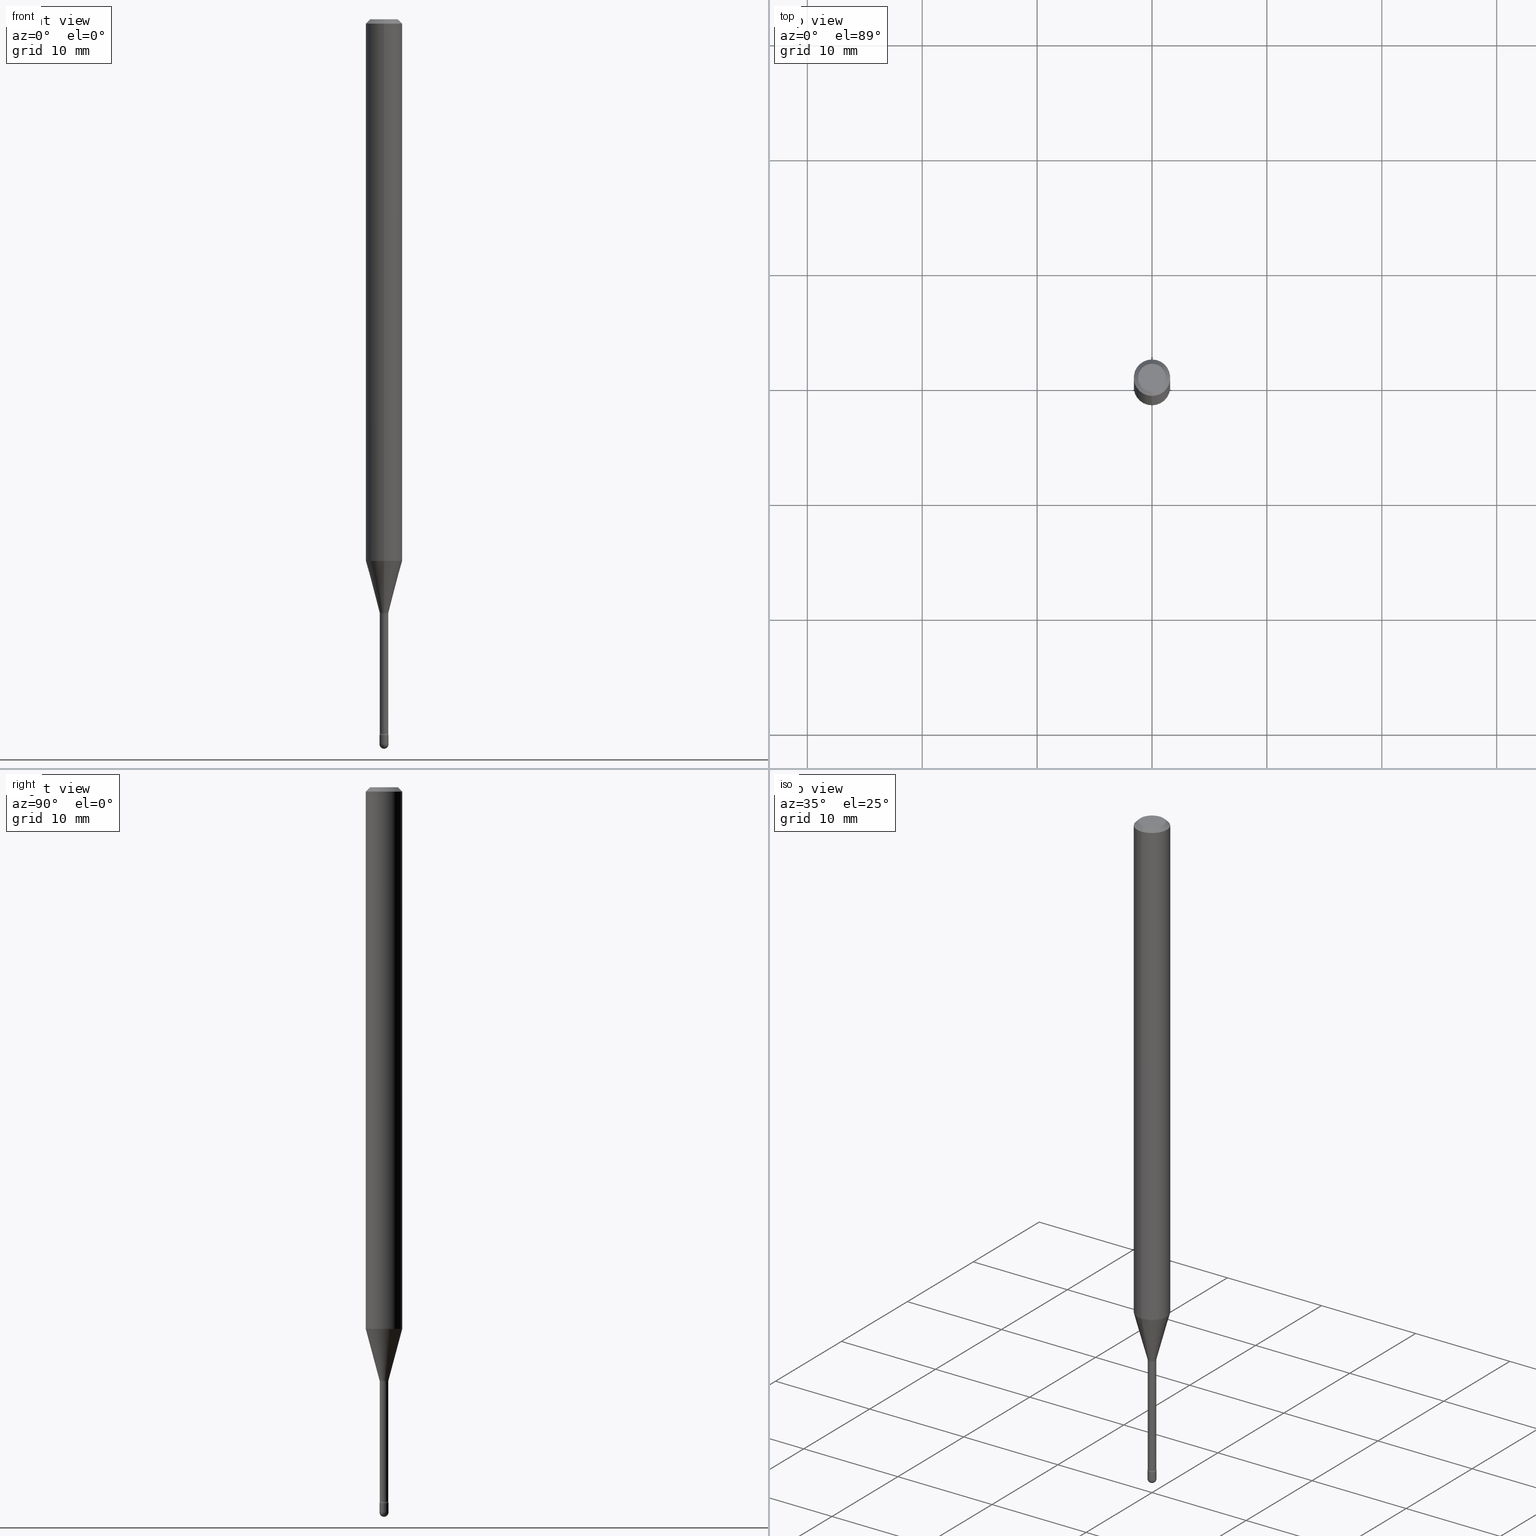
[diagram: canonical four-view strip — front | top / right | iso, engineering-drawing reading convention]
A machine part, canonical four-view strip (front | top / right | iso — engineering-drawing reading convention). The complete STEP part file that produces these views, byte-faithful:
ISO-10303-21;
HEADER;
FILE_DESCRIPTION (( 'STEP AP203' ),
    '1' );
FILE_NAME ('09442.STEP',
    '2024-04-09T23:12:34',
    ( '' ),
    ( '' ),
    'SwSTEP 2.0',
    'SolidWorks 2023',
    '' );
FILE_SCHEMA (( 'CONFIG_CONTROL_DESIGN' ));
ENDSEC;

DATA;
#1 = ORIENTED_EDGE ( 'NONE', *, *, #361, .F. ) ;
#2 = DIRECTION ( 'NONE',  ( -2.445473815707476510E-29, 3.491474164922030519E-15, 1.000000000000000000 ) ) ;
#3 = ORIENTED_EDGE ( 'NONE', *, *, #186, .F. ) ;
#4 = PERSON ( 'UNSPECIFIED', 'UNSPECIFIED', 'UNSPECIFIED', ('UNSPECIFIED'), ('UNSPECIFIED'), ('UNSPECIFIED') ) ;
#5 = DIRECTION ( 'NONE',  ( -6.982962677686265133E-15, -1.000000000000000000, 0.000000000000000000 ) ) ;
#6 = AXIS2_PLACEMENT_3D ( 'NONE', #468, #152, #77 ) ;
#7 = AXIS2_PLACEMENT_3D ( 'NONE', #532, #441, #59 ) ;
#8 = ORIENTED_EDGE ( 'NONE', *, *, #243, .T. ) ;
#9 = DIRECTION ( 'NONE',  ( -2.445473815707476510E-29, 3.491474164922030519E-15, 1.000000000000000000 ) ) ;
#10 = EDGE_LOOP ( 'NONE', ( #269, #346, #352, #479 ) ) ;
#11 = ORIENTED_EDGE ( 'NONE', *, *, #90, .F. ) ;
#12 = DIRECTION ( 'NONE',  ( 6.982962677686265922E-15, 1.000000000000000000, -3.491474164922030519E-15 ) ) ;
#13 = DIRECTION ( 'NONE',  ( -2.445473815707476510E-29, 3.491474164922030519E-15, 1.000000000000000000 ) ) ;
#14 = ORIENTED_EDGE ( 'NONE', *, *, #361, .T. ) ;
#15 = VERTEX_POINT ( 'NONE', #414 ) ;
#16 = LINE ( 'NONE', #356, #167 ) ;
#17 = VERTEX_POINT ( 'NONE', #70 ) ;
#18 = AXIS2_PLACEMENT_3D ( 'NONE', #103, #157, #84 ) ;
#19 = FACE_OUTER_BOUND ( 'NONE', #464, .T. ) ;
#20 = VERTEX_POINT ( 'NONE', #154 ) ;
#21 = LENGTH_MEASURE_WITH_UNIT ( LENGTH_MEASURE( 0.02539999999999999897 ), #25 );
#22 = EDGE_CURVE ( 'NONE', #192, #306, #179, .T. ) ;
#23 = CARTESIAN_POINT ( 'NONE',  ( 0.01549999999999999989, -8.727830476773153796E-15, -2.484500000000000153 ) ) ;
#24 = CIRCLE ( 'NONE', #281, 0.01500000000000002373 ) ;
#25 =( LENGTH_UNIT ( ) NAMED_UNIT ( * ) SI_UNIT ( $, .METRE. ) );
#26 = VECTOR ( 'NONE', #498, 39.37007874015748143 ) ;
#27 = MECHANICAL_CONTEXT ( 'NONE', #172, 'mechanical' ) ;
#28 = ADVANCED_FACE ( 'NONE', ( #548 ), #564, .F. ) ;
#29 = DIRECTION ( 'NONE',  ( -6.982962677686268288E-15, -1.000000000000000000, 0.000000000000000000 ) ) ;
#30 = COORDINATED_UNIVERSAL_TIME_OFFSET ( 5, 0, .BEHIND. ) ;
#31 = CARTESIAN_POINT ( 'NONE',  ( 5.985888121363136129E-29, -8.546261812574526278E-15, -2.447746667724196357 ) ) ;
#32 = PERSON_AND_ORGANIZATION_ROLE ( 'classification_officer' ) ;
#33 = CIRCLE ( 'NONE', #493, 0.01455000000000000217 ) ;
#34 = EDGE_CURVE ( 'NONE', #524, #387, #396, .T. ) ;
#35 = DIRECTION ( 'NONE',  ( -2.445473815707476510E-29, 3.491474164922030519E-15, 1.000000000000000000 ) ) ;
#36 = CARTESIAN_POINT ( 'NONE',  ( 4.440892098500625669E-16, 0.06250000000000000000, 2.598562635836191558E-16 ) ) ;
#37 = ORIENTED_EDGE ( 'NONE', *, *, #467, .T. ) ;
#38 = DATE_AND_TIME ( #331, #565 ) ;
#39 = DIRECTION ( 'NONE',  ( -1.000000000000000000, 6.982962677686265922E-15, -4.883557194083112901E-29 ) ) ;
#40 = AXIS2_PLACEMENT_3D ( 'NONE', #112, #202, #29 ) ;
#41 = DIRECTION ( 'NONE',  ( 1.000000000000000000, -7.105427357601001070E-15, 4.926315420686887018E-29 ) ) ;
#42 = CIRCLE ( 'NONE', #277, 0.01549999999999999989 ) ;
#43 = ORIENTED_EDGE ( 'NONE', *, *, #145, .T. ) ;
#44 = ADVANCED_FACE ( 'NONE', ( #116 ), #119, .F. ) ;
#45 = DIRECTION ( 'NONE',  ( -1.807323732225327773E-15, -0.2588190451025178529, 0.9659258262890690894 ) ) ;
#46 = EDGE_LOOP ( 'NONE', ( #268, #375, #216, #308 ) ) ;
#47 = CARTESIAN_POINT ( 'NONE',  ( 4.538917185208773533E-29, -6.480344212678622894E-15, -1.856048163777072713 ) ) ;
#48 = LINE ( 'NONE', #36, #242 ) ;
#49 = MANIFOLD_SOLID_BREP ( 'Body-Move/Copy2[2]', #209 ) ;
#50 = CARTESIAN_POINT ( 'NONE',  ( -1.051711872097320102E-16, -0.01506111260567108076, -2.033092501787272965 ) ) ;
#51 = ORIENTED_EDGE ( 'NONE', *, *, #425, .T. ) ;
#52 = AXIS2_PLACEMENT_3D ( 'NONE', #262, #162, #438 ) ;
#53 = ORIENTED_EDGE ( 'NONE', *, *, #151, .F. ) ;
#54 = VERTEX_POINT ( 'NONE', #246 ) ;
#55 = DIRECTION ( 'NONE',  ( -6.982962677686265922E-15, -1.000000000000000000, 4.370956789862821150E-15 ) ) ;
#56 = LINE ( 'NONE', #184, #517 ) ;
#57 = EDGE_LOOP ( 'NONE', ( #220, #274, #225, #422 ) ) ;
#58 =( CONVERSION_BASED_UNIT ( 'INCH', #21 ) LENGTH_UNIT ( ) NAMED_UNIT ( #104 ) );
#59 = DIRECTION ( 'NONE',  ( -6.982962677686265922E-15, -1.000000000000000000, 3.491474164922030519E-15 ) ) ;
#60 = EDGE_LOOP ( 'NONE', ( #259, #51, #448, #486, #353 ) ) ;
#61 = CARTESIAN_POINT ( 'NONE',  ( -4.364351673553912750E-16, -0.06250000000000005551, -0.01499999999999986587 ) ) ;
#62 = CIRCLE ( 'NONE', #156, 0.04749999999999999362 ) ;
#63 = DIRECTION ( 'NONE',  ( -1.000000000000000000, 6.982962677686265922E-15, -4.883557194083112901E-29 ) ) ;
#64 = DIRECTION ( 'NONE',  ( -7.105427357601001070E-15, -1.000000000000000000, 0.000000000000000000 ) ) ;
#65 = EDGE_CURVE ( 'NONE', #285, #492, #291, .T. ) ;
#66 = EDGE_LOOP ( 'NONE', ( #412, #343, #177, #231 ) ) ;
#67 = DIRECTION ( 'NONE',  ( 1.000000000000000000, 0.000000000000000000, 0.000000000000000000 ) ) ;
#68 = CARTESIAN_POINT ( 'NONE',  ( 5.998734981572139453E-29, -8.564603724182235719E-15, -2.452999999999999847 ) ) ;
#69 = ADVANCED_FACE ( 'NONE', ( #205 ), #444, .T. ) ;
#70 = CARTESIAN_POINT ( 'NONE',  ( -1.016021069602853717E-16, -0.01455000000000711453, -2.036974787463810888 ) ) ;
#71 = AXIS2_PLACEMENT_3D ( 'NONE', #525, #483, #92 ) ;
#72 = DIRECTION ( 'NONE',  ( 1.000000000000000000, -6.982962677686266711E-15, 4.876176775795935232E-29 ) ) ;
#73 = APPROVAL_PERSON_ORGANIZATION ( #198, #81, #551 ) ;
#74 = CC_DESIGN_APPROVAL ( #138, ( #388 ) ) ;
#75 = CARTESIAN_POINT ( 'NONE',  ( 5.998747269930439159E-29, -8.564586126553740940E-15, -2.452999999999999847 ) ) ;
#76 = DATE_AND_TIME ( #397, #462 ) ;
#77 = DIRECTION ( 'NONE',  ( -6.982962677686265922E-15, -1.000000000000000000, 3.491474164922030519E-15 ) ) ;
#78 = APPROVAL_STATUS ( 'not_yet_approved' ) ;
#79 = AXIS2_PLACEMENT_3D ( 'NONE', #563, #39, #168 ) ;
#80 = AXIS2_PLACEMENT_3D ( 'NONE', #123, #389, #313 ) ;
#81 = APPROVAL ( #364, 'UNSPECIFIED' ) ;
#82 = DIRECTION ( 'NONE',  ( -2.445473815707476510E-29, 3.491474164922030519E-15, 1.000000000000000000 ) ) ;
#83 = PERSON_AND_ORGANIZATION ( #4, #312 ) ;
#84 = DIRECTION ( 'NONE',  ( -6.982962677686266711E-15, -1.000000000000000000, 0.000000000000000000 ) ) ;
#85 = CARTESIAN_POINT ( 'NONE',  ( 5.998734981572139453E-29, -8.564603724182235719E-15, -2.452999999999999847 ) ) ;
#86 = CARTESIAN_POINT ( 'NONE',  ( 4.440892098501082715E-16, 0.06249999999999995143, -0.01500000000000030129 ) ) ;
#87 = FACE_OUTER_BOUND ( 'NONE', #332, .T. ) ;
#88 = CARTESIAN_POINT ( 'NONE',  ( 4.981358301728348415E-29, -7.112059458123878083E-15, -2.036974787463810888 ) ) ;
#89 = DIRECTION ( 'NONE',  ( 1.000000000000000000, -6.982962677686238312E-15, 0.000000000000000000 ) ) ;
#90 = EDGE_CURVE ( 'NONE', #285, #54, #484, .T. ) ;
#91 = EDGE_LOOP ( 'NONE', ( #530, #190, #1, #366 ) ) ;
#92 = DIRECTION ( 'NONE',  ( -6.982962677686265922E-15, -1.000000000000000000, 3.483106191921935554E-15 ) ) ;
#93 = AXIS2_PLACEMENT_3D ( 'NONE', #68, #544, #109 ) ;
#94 = CARTESIAN_POINT ( 'NONE',  ( -4.364351673553916201E-16, -0.06250000000000000000, 6.962905341988730200E-16 ) ) ;
#95 = VERTEX_POINT ( 'NONE', #23 ) ;
#96 = DIRECTION ( 'NONE',  ( -6.982962677686266711E-15, -1.000000000000000000, 0.000000000000000000 ) ) ;
#97 = EDGE_CURVE ( 'NONE', #387, #54, #302, .T. ) ;
#98 = LINE ( 'NONE', #258, #536 ) ;
#99 = ORIENTED_EDGE ( 'NONE', *, *, #97, .T. ) ;
#100 = ORIENTED_EDGE ( 'NONE', *, *, #34, .T. ) ;
#101 = FACE_OUTER_BOUND ( 'NONE', #46, .T. ) ;
#102 = DIRECTION ( 'NONE',  ( -6.982962677686266711E-15, -1.000000000000000000, 3.491474164922028942E-15 ) ) ;
#103 = CARTESIAN_POINT ( 'NONE',  ( 4.971874478031982191E-29, -7.098489944886961666E-15, -2.033092501787272965 ) ) ;
#104 = DIMENSIONAL_EXPONENTS ( 1.000000000000000000, 0.000000000000000000, 0.000000000000000000, 0.000000000000000000, 0.000000000000000000, 0.000000000000000000, 0.000000000000000000 ) ;
#105 = CLOSED_SHELL ( 'NONE', ( #126, #383, #552, #218, #510 ) ) ;
#106 = AXIS2_PLACEMENT_3D ( 'NONE', #446, #489, #183 ) ;
#107 = FACE_OUTER_BOUND ( 'NONE', #57, .T. ) ;
#108 = CARTESIAN_POINT ( 'NONE',  ( 2.023589285005646150E-45, -2.889068848000358283E-31, -8.274737283279840754E-17 ) ) ;
#109 = DIRECTION ( 'NONE',  ( 1.000000000000000000, -6.982962677686265922E-15, 4.876176775795935793E-29 ) ) ;
#110 = CC_DESIGN_PERSON_AND_ORGANIZATION_ASSIGNMENT ( #241, #32, ( #456 ) ) ;
#111 = AXIS2_PLACEMENT_3D ( 'NONE', #329, #511, #118 ) ;
#112 = CARTESIAN_POINT ( 'NONE',  ( -2.063465471255695831E-16, -0.02955000000000858329, -2.447746667724196357 ) ) ;
#113 = CIRCLE ( 'NONE', #80, 0.01549999999999999989 ) ;
#114 = ORIENTED_EDGE ( 'NONE', *, *, #342, .T. ) ;
#115 = VERTEX_POINT ( 'NONE', #411 ) ;
#116 = FACE_OUTER_BOUND ( 'NONE', #66, .T. ) ;
#117 = ADVANCED_FACE ( 'NONE', ( #324 ), #129, .T. ) ;
#118 = DIRECTION ( 'NONE',  ( 1.000000000000000000, -6.982962677686266711E-15, 4.876176775795935232E-29 ) ) ;
#119 = TOROIDAL_SURFACE ( 'NONE', #6, 0.02954999999999999988, 0.01500000000000002373 ) ;
#120 = AXIS2_PLACEMENT_3D ( 'NONE', #310, #270, #395 ) ;
#121 = DIRECTION ( 'NONE',  ( 1.000000000000000000, -6.982962677686301420E-15, 0.000000000000000000 ) ) ;
#122 = CC_DESIGN_APPROVAL ( #81, ( #442 ) ) ;
#123 = CARTESIAN_POINT ( 'NONE',  ( 6.075767248966972494E-29, -8.674585386355795965E-15, -2.484500000000000153 ) ) ;
#124 = APPROVAL_DATE_TIME ( #369, #138 ) ;
#125 = CARTESIAN_POINT ( 'NONE',  ( 5.985900383404751358E-29, -8.546244252633021898E-15, -2.447746667724196357 ) ) ;
#126 = ADVANCED_FACE ( 'NONE', ( #365 ), #553, .T. ) ;
#127 = DIRECTION ( 'NONE',  ( -6.982962677686266711E-15, -1.000000000000000000, 0.000000000000000000 ) ) ;
#128 = VERTEX_POINT ( 'NONE', #473 ) ;
#129 = CONICAL_SURFACE ( 'NONE', #453, 0.01506111260566398227, 0.2617993877991499074 ) ;
#130 = APPROVAL_ROLE ( '' ) ;
#131 = AXIS2_PLACEMENT_3D ( 'NONE', #139, #404, #102 ) ;
#132 = CARTESIAN_POINT ( 'NONE',  ( 5.998734981572139453E-29, -8.564603724182235719E-15, -2.452999999999999847 ) ) ;
#133 = APPROVAL_PERSON_ORGANIZATION ( #287, #138, #376 ) ;
#134 = ADVANCED_FACE ( 'NONE', ( #141 ), #377, .T. ) ;
#135 = DIRECTION ( 'NONE',  ( 2.445473815707476230E-29, -3.491474164922030519E-15, -1.000000000000000000 ) ) ;
#136 = CARTESIAN_POINT ( 'NONE',  ( -1.101341240427545269E-16, -0.01550000000000864402, -2.484500000000000153 ) ) ;
#137 = ORIENTED_EDGE ( 'NONE', *, *, #371, .T. ) ;
#138 = APPROVAL ( #78, 'UNSPECIFIED' ) ;
#139 = CARTESIAN_POINT ( 'NONE',  ( -1.169113584055446105E-44, 1.669184350826100908E-30, 4.780733988912460139E-16 ) ) ;
#140 = VERTEX_POINT ( 'NONE', #136 ) ;
#141 = FACE_OUTER_BOUND ( 'NONE', #549, .T. ) ;
#142 = CIRCLE ( 'NONE', #461, 0.01549999999999999989 ) ;
#143 = AXIS2_PLACEMENT_3D ( 'NONE', #368, #284, #463 ) ;
#144 = CARTESIAN_POINT ( 'NONE',  ( 1.033839680531545705E-16, 0.01454999999999289327, -2.036974787463810888 ) ) ;
#145 = EDGE_CURVE ( 'NONE', #339, #426, #98, .T. ) ;
#146 = CARTESIAN_POINT ( 'NONE',  ( 6.075767248966972494E-29, -8.674585386355795965E-15, -2.484500000000000153 ) ) ;
#147 = ORIENTED_EDGE ( 'NONE', *, *, #349, .F. ) ;
#148 = AXIS2_PLACEMENT_3D ( 'NONE', #31, #155, #196 ) ;
#149 = CARTESIAN_POINT ( 'NONE',  ( -4.364351673553463592E-16, -0.06250000000000649480, -1.856048163777072491 ) ) ;
#150 = AXIS2_PLACEMENT_3D ( 'NONE', #452, #63, #401 ) ;
#151 = EDGE_CURVE ( 'NONE', #524, #285, #405, .T. ) ;
#152 = DIRECTION ( 'NONE',  ( -2.445473815707476510E-29, 3.491474164922030519E-15, 1.000000000000000000 ) ) ;
#153 = PERSON_AND_ORGANIZATION ( #4, #312 ) ;
#154 = CARTESIAN_POINT ( 'NONE',  ( 4.440892098501077785E-16, 0.06249999999999351213, -1.856048163777072935 ) ) ;
#155 = DIRECTION ( 'NONE',  ( -2.445473815707476510E-29, 3.491474164922030519E-15, 1.000000000000000000 ) ) ;
#156 = AXIS2_PLACEMENT_3D ( 'NONE', #436, #351, #222 ) ;
#157 = DIRECTION ( 'NONE',  ( -2.445473815707476510E-29, 3.491474164922030519E-15, 1.000000000000000000 ) ) ;
#158 = APPLICATION_CONTEXT ( 'configuration controlled 3d designs of mechanical parts and assemblies' ) ;
#159 = DIRECTION ( 'NONE',  ( 1.000000000000000000, -7.105427357601001070E-15, 4.926315420686887018E-29 ) ) ;
#160 = APPROVAL_DATE_TIME ( #469, #195 ) ;
#161 = CARTESIAN_POINT ( 'NONE',  ( 6.075767248966972494E-29, -8.674585386355795965E-15, -2.484500000000000153 ) ) ;
#162 = DIRECTION ( 'NONE',  ( -2.445473815707476510E-29, 3.491474164922030519E-15, 1.000000000000000000 ) ) ;
#163 = VERTEX_POINT ( 'NONE', #206 ) ;
#164 = CALENDAR_DATE ( 2024, 9, 4 ) ;
#165 = CIRCLE ( 'NONE', #71, 0.06250000000000000000 ) ;
#166 = EDGE_CURVE ( 'NONE', #15, #140, #506, .T. ) ;
#167 = VECTOR ( 'NONE', #187, 39.37007874015748143 ) ;
#168 = DIRECTION ( 'NONE',  ( 6.982962677686265922E-15, 1.000000000000000000, 0.000000000000000000 ) ) ;
#169 = DIRECTION ( 'NONE',  ( -2.445473815707476510E-29, 3.491474164922030519E-15, 1.000000000000000000 ) ) ;
#170 = EDGE_LOOP ( 'NONE', ( #14, #481, #384, #200 ) ) ;
#171 = CC_DESIGN_DATE_AND_TIME_ASSIGNMENT ( #38, #253, ( #456 ) ) ;
#172 = APPLICATION_CONTEXT ( 'configuration controlled 3d designs of mechanical parts and assemblies' ) ;
#173 = CARTESIAN_POINT ( 'NONE',  ( 6.075767248966972494E-29, -8.674585386355795965E-15, -2.484500000000000153 ) ) ;
#174 = FACE_OUTER_BOUND ( 'NONE', #182, .T. ) ;
#175 = CARTESIAN_POINT ( 'NONE',  ( 4.971874478031982191E-29, -7.098489944886961666E-15, -2.033092501787272965 ) ) ;
#176 = ORIENTED_EDGE ( 'NONE', *, *, #97, .F. ) ;
#177 = ORIENTED_EDGE ( 'NONE', *, *, #221, .T. ) ;
#178 = PLANE ( 'NONE',  #430 ) ;
#179 = CIRCLE ( 'NONE', #328, 0.04749999999999999362 ) ;
#180 = CARTESIAN_POINT ( 'NONE',  ( 6.075767248966972494E-29, -8.674585386355795965E-15, -2.484500000000000153 ) ) ;
#181 = CIRCLE ( 'NONE', #455, 0.01549999999999999989 ) ;
#182 = EDGE_LOOP ( 'NONE', ( #477, #314, #447, #420 ) ) ;
#183 = DIRECTION ( 'NONE',  ( -6.982962677686265922E-15, -1.000000000000000000, 3.491474164922030519E-15 ) ) ;
#184 = CARTESIAN_POINT ( 'NONE',  ( 4.364351673553919652E-16, 0.06249999999999995143, -0.01500000000000030129 ) ) ;
#185 = DIRECTION ( 'NONE',  ( -2.445473815707476510E-29, 3.491474164922030519E-15, 1.000000000000000000 ) ) ;
#186 = EDGE_CURVE ( 'NONE', #20, #451, #48, .T. ) ;
#187 = DIRECTION ( 'NONE',  ( -2.445468806185136877E-29, 3.491481338843145188E-15, 1.000000000000000000 ) ) ;
#188 = VECTOR ( 'NONE', #232, 39.37007874015748143 ) ;
#189 = FACE_OUTER_BOUND ( 'NONE', #538, .T. ) ;
#190 = ORIENTED_EDGE ( 'NONE', *, *, #201, .T. ) ;
#191 = EDGE_CURVE ( 'NONE', #451, #443, #165, .T. ) ;
#192 = VERTEX_POINT ( 'NONE', #264 ) ;
#193 = AXIS2_PLACEMENT_3D ( 'NONE', #217, #340, #5 ) ;
#194 = CONICAL_SURFACE ( 'NONE', #143, 0.06250000000000000000, 0.7853981633974483900 ) ;
#195 = APPROVAL ( #431, 'UNSPECIFIED' ) ;
#196 = DIRECTION ( 'NONE',  ( -6.982962677686265922E-15, -1.000000000000000000, 3.491474164922030519E-15 ) ) ;
#197 = DIRECTION ( 'NONE',  ( -2.445468806185136597E-29, 3.491481338843145583E-15, 1.000000000000000000 ) ) ;
#198 = PERSON_AND_ORGANIZATION ( #4, #312 ) ;
#199 = DIRECTION ( 'NONE',  ( -6.982962677686266711E-15, -1.000000000000000000, 0.000000000000000000 ) ) ;
#200 = ORIENTED_EDGE ( 'NONE', *, *, #301, .F. ) ;
#201 = EDGE_CURVE ( 'NONE', #115, #20, #480, .T. ) ;
#202 = DIRECTION ( 'NONE',  ( -1.000000000000000000, 6.982962677686265922E-15, -4.883557194083112340E-29 ) ) ;
#203 = COORDINATED_UNIVERSAL_TIME_OFFSET ( 5, 0, .BEHIND. ) ;
#204 = LOCAL_TIME ( 19, 12, 34.00000000000000000, #296 ) ;
#205 = FACE_OUTER_BOUND ( 'NONE', #450, .T. ) ;
#206 = CARTESIAN_POINT ( 'NONE',  ( 6.114334769336955252E-29, -8.727754245838525120E-15, -2.500000000000000000 ) ) ;
#207 = ADVANCED_FACE ( 'NONE', ( #423 ), #294, .T. ) ;
#208 = CARTESIAN_POINT ( 'NONE',  ( -1.169113584055446105E-44, 1.669184350826100908E-30, 4.780733988912460139E-16 ) ) ;
#209 = CLOSED_SHELL ( 'NONE', ( #449, #330, #488, #403, #207, #117, #134, #282, #69, #475, #278, #28, #496, #44 ) ) ;
#210 = COORDINATED_UNIVERSAL_TIME_OFFSET ( 5, 0, .BEHIND. ) ;
#211 = CC_DESIGN_DATE_AND_TIME_ASSIGNMENT ( #466, #560, ( #442 ) ) ;
#212 = CIRCLE ( 'NONE', #120, 0.06250000000000000000 ) ;
#213 = DIRECTION ( 'NONE',  ( 7.105427357600999492E-15, 1.000000000000000000, 0.000000000000000000 ) ) ;
#214 = ORIENTED_EDGE ( 'NONE', *, *, #467, .F. ) ;
#215 = ORIENTED_EDGE ( 'NONE', *, *, #458, .T. ) ;
#216 = ORIENTED_EDGE ( 'NONE', *, *, #349, .T. ) ;
#217 = CARTESIAN_POINT ( 'NONE',  ( 5.985900383404751358E-29, -8.546244252633021898E-15, -2.447746667724196357 ) ) ;
#218 = ADVANCED_FACE ( 'NONE', ( #174 ), #249, .T. ) ;
#219 = ORIENTED_EDGE ( 'NONE', *, *, #556, .F. ) ;
#220 = ORIENTED_EDGE ( 'NONE', *, *, #309, .F. ) ;
#221 = EDGE_CURVE ( 'NONE', #339, #17, #385, .T. ) ;
#222 = DIRECTION ( 'NONE',  ( -6.982962677686266711E-15, -1.000000000000000000, 3.491474164922030914E-15 ) ) ;
#223 = ORIENTED_EDGE ( 'NONE', *, *, #534, .F. ) ;
#224 =( NAMED_UNIT ( * ) PLANE_ANGLE_UNIT ( ) SI_UNIT ( $, .RADIAN. ) );
#225 = ORIENTED_EDGE ( 'NONE', *, *, #166, .F. ) ;
#226 = AXIS2_PLACEMENT_3D ( 'NONE', #360, #197, #72 ) ;
#227 = SPHERICAL_SURFACE ( 'NONE', #150, 0.01549999999999993744 ) ;
#228 = PLANE ( 'NONE',  #93 ) ;
#229 = ADVANCED_BREP_SHAPE_REPRESENTATION ( '09442', ( #421, #49, #235 ), #406 ) ;
#230 = EDGE_CURVE ( 'NONE', #285, #524, #290, .T. ) ;
#231 = ORIENTED_EDGE ( 'NONE', *, *, #415, .T. ) ;
#232 = DIRECTION ( 'NONE',  ( -4.851104656540964275E-15, -0.7071067811865500152, -0.7071067811865450192 ) ) ;
#233 = APPLICATION_PROTOCOL_DEFINITION ( 'international standard', 'config_control_design', 1994, #172 ) ;
#234 = UNCERTAINTY_MEASURE_WITH_UNIT (LENGTH_MEASURE( 1.000000000000000082E-05 ), #58, 'distance_accuracy_value', 'NONE');
#235 = AXIS2_PLACEMENT_3D ( 'NONE', #457, #237, #67 ) ;
#236 = DIRECTION ( 'NONE',  ( -6.982962677686265922E-15, -1.000000000000000000, 0.000000000000000000 ) ) ;
#237 = DIRECTION ( 'NONE',  ( 0.000000000000000000, 0.000000000000000000, 1.000000000000000000 ) ) ;
#238 = CARTESIAN_POINT ( 'NONE',  ( 4.971874478031982191E-29, -7.098489944886961666E-15, -2.033092501787272965 ) ) ;
#239 = EDGE_CURVE ( 'NONE', #490, #15, #142, .T. ) ;
#240 = EDGE_LOOP ( 'NONE', ( #11, #53, #100, #99 ) ) ;
#241 = PERSON_AND_ORGANIZATION ( #4, #312 ) ;
#242 = VECTOR ( 'NONE', #2, 39.37007874015748143 ) ;
#243 = EDGE_CURVE ( 'NONE', #128, #392, #516, .T. ) ;
#244 = DIRECTION ( 'NONE',  ( -2.445473815707476510E-29, 3.491474164922030519E-15, 1.000000000000000000 ) ) ;
#245 = CARTESIAN_POINT ( 'NONE',  ( 0.01549999999999999989, -8.672839645686373673E-15, -2.452999999999999847 ) ) ;
#246 = CARTESIAN_POINT ( 'NONE',  ( 1.101341240428755801E-16, 0.01549999999999144597, -2.452999999999999847 ) ) ;
#247 = PERSON_AND_ORGANIZATION_ROLE ( 'creator' ) ;
#248 = ORIENTED_EDGE ( 'NONE', *, *, #288, .F. ) ;
#249 = SPHERICAL_SURFACE ( 'NONE', #79, 0.01549999999999993744 ) ;
#250 = DIRECTION ( 'NONE',  ( -6.982962677686266711E-15, -1.000000000000000000, 3.491474164922028942E-15 ) ) ;
#251 = CC_DESIGN_PERSON_AND_ORGANIZATION_ASSIGNMENT ( #512, #252, ( #388 ) ) ;
#252 = PERSON_AND_ORGANIZATION_ROLE ( 'design_supplier' ) ;
#253 = DATE_TIME_ROLE ( 'classification_date' ) ;
#254 = CARTESIAN_POINT ( 'NONE',  ( 2.099653784171593762E-16, 0.02954999999999288751, -2.036974787463810888 ) ) ;
#255 = CARTESIAN_POINT ( 'NONE',  ( 3.840629472727447874E-16, 0.04749999999999999362, -2.485923956665948360E-16 ) ) ;
#256 = ORIENTED_EDGE ( 'NONE', *, *, #350, .T. ) ;
#257 = CIRCLE ( 'NONE', #554, 0.01506111260566398227 ) ;
#258 = CARTESIAN_POINT ( 'NONE',  ( -1.051711872097320102E-16, -0.01506111260567108076, -2.033092501787272965 ) ) ;
#259 = ORIENTED_EDGE ( 'NONE', *, *, #239, .T. ) ;
#260 = EDGE_CURVE ( 'NONE', #115, #492, #24, .T. ) ;
#261 = CARTESIAN_POINT ( 'NONE',  ( -1.169113584055446105E-44, 1.669184350826100908E-30, 4.780733988912460139E-16 ) ) ;
#262 = CARTESIAN_POINT ( 'NONE',  ( 5.998747269930439159E-29, -8.564586126553740940E-15, -2.452999999999999847 ) ) ;
#263 = EDGE_LOOP ( 'NONE', ( #176, #147 ) ) ;
#264 = CARTESIAN_POINT ( 'NONE',  ( -3.773273898774340269E-16, -0.04749999999999999362, 8.309765000099803325E-17 ) ) ;
#265 = ORIENTED_EDGE ( 'NONE', *, *, #415, .F. ) ;
#266 = DIRECTION ( 'NONE',  ( -6.982962677686265922E-15, -1.000000000000000000, 3.491474164922030519E-15 ) ) ;
#267 = AXIS2_PLACEMENT_3D ( 'NONE', #85, #297, #89 ) ;
#268 = ORIENTED_EDGE ( 'NONE', *, *, #230, .F. ) ;
#269 = ORIENTED_EDGE ( 'NONE', *, *, #65, .F. ) ;
#270 = DIRECTION ( 'NONE',  ( -2.445473815707476510E-29, 3.491474164922030519E-15, 1.000000000000000000 ) ) ;
#271 = CC_DESIGN_PERSON_AND_ORGANIZATION_ASSIGNMENT ( #417, #478, ( #388 ) ) ;
#272 = DIRECTION ( 'NONE',  ( -2.445468806185136597E-29, 3.491481338843145583E-15, 1.000000000000000000 ) ) ;
#273 = LINE ( 'NONE', #94, #386 ) ;
#274 = ORIENTED_EDGE ( 'NONE', *, *, #528, .T. ) ;
#275 = CARTESIAN_POINT ( 'NONE',  ( 6.075767248966972494E-29, -8.674585386355795965E-15, -2.484500000000000153 ) ) ;
#276 = VECTOR ( 'NONE', #374, 39.37007874015748854 ) ;
#277 = AXIS2_PLACEMENT_3D ( 'NONE', #132, #523, #433 ) ;
#278 = ADVANCED_FACE ( 'NONE', ( #380 ), #341, .F. ) ;
#279 = CARTESIAN_POINT ( 'NONE',  ( -1.082359215040772121E-16, -0.01550000000000857463, -2.452999999999999847 ) ) ;
#280 = DIRECTION ( 'NONE',  ( 7.105427357601003436E-15, 1.000000000000000000, 0.000000000000000000 ) ) ;
#281 = AXIS2_PLACEMENT_3D ( 'NONE', #254, #41, #213 ) ;
#282 = ADVANCED_FACE ( 'NONE', ( #189 ), #541, .T. ) ;
#283 = AXIS2_PLACEMENT_3D ( 'NONE', #491, #13, #391 ) ;
#284 = DIRECTION ( 'NONE',  ( 2.445473815707476510E-29, -3.491474164922030519E-15, -1.000000000000000000 ) ) ;
#285 = VERTEX_POINT ( 'NONE', #394 ) ;
#286 = CARTESIAN_POINT ( 'NONE',  ( 1.033839680530946541E-16, 0.01455000000000001258, 4.272724497916305187E-16 ) ) ;
#287 = PERSON_AND_ORGANIZATION ( #4, #312 ) ;
#288 = EDGE_CURVE ( 'NONE', #306, #451, #56, .T. ) ;
#289 = PRODUCT_DEFINITION_SHAPE ( 'NONE', 'NONE',  #442 ) ;
#290 = CIRCLE ( 'NONE', #193, 0.01455000000000002472 ) ;
#291 = LINE ( 'NONE', #286, #545 ) ;
#292 = CIRCLE ( 'NONE', #52, 0.01549999999999999989 ) ;
#293 = EDGE_CURVE ( 'NONE', #95, #392, #16, .T. ) ;
#294 = CYLINDRICAL_SURFACE ( 'NONE', #320, 0.06250000000000000000 ) ;
#295 = ORIENTED_EDGE ( 'NONE', *, *, #151, .T. ) ;
#296 = COORDINATED_UNIVERSAL_TIME_OFFSET ( 5, 0, .BEHIND. ) ;
#297 = DIRECTION ( 'NONE',  ( -2.445468806185136597E-29, 3.491481338843145583E-15, 1.000000000000000000 ) ) ;
#298 = EDGE_LOOP ( 'NONE', ( #562, #390, #555, #248 ) ) ;
#299 = EDGE_LOOP ( 'NONE', ( #337, #435, #114, #439 ) ) ;
#300 = DIRECTION ( 'NONE',  ( -6.982962677686265133E-15, -1.000000000000000000, 0.000000000000000000 ) ) ;
#301 = EDGE_CURVE ( 'NONE', #426, #443, #273, .T. ) ;
#302 = CIRCLE ( 'NONE', #336, 0.01549999999999999989 ) ;
#303 = CIRCLE ( 'NONE', #527, 0.01549999999999993744 ) ;
#304 = DIRECTION ( 'NONE',  ( -2.445473815707476510E-29, 3.491474164922030519E-15, 1.000000000000000000 ) ) ;
#305 = CYLINDRICAL_SURFACE ( 'NONE', #547, 0.01455000000000001258 ) ;
#306 = VERTEX_POINT ( 'NONE', #255 ) ;
#307 = FACE_OUTER_BOUND ( 'NONE', #10, .T. ) ;
#308 = ORIENTED_EDGE ( 'NONE', *, *, #34, .F. ) ;
#309 = EDGE_CURVE ( 'NONE', #163, #490, #303, .T. ) ;
#310 = CARTESIAN_POINT ( 'NONE',  ( 4.538917185208773533E-29, -6.480344212678622894E-15, -1.856048163777072713 ) ) ;
#311 = FACE_OUTER_BOUND ( 'NONE', #381, .T. ) ;
#312 = ORGANIZATION ( 'UNSPECIFIED', 'UNSPECIFIED', '' ) ;
#313 = DIRECTION ( 'NONE',  ( 1.000000000000000000, -6.982962677686301420E-15, 0.000000000000000000 ) ) ;
#314 = ORIENTED_EDGE ( 'NONE', *, *, #309, .T. ) ;
#315 = COORDINATED_UNIVERSAL_TIME_OFFSET ( 5, 0, .BEHIND. ) ;
#316 = LINE ( 'NONE', #362, #26 ) ;
#317 = CARTESIAN_POINT ( 'NONE',  ( -1.016021069602754739E-16, -0.01455000000000856997, -2.447746667724196357 ) ) ;
#318 = EDGE_CURVE ( 'NONE', #392, #128, #42, .T. ) ;
#319 = CARTESIAN_POINT ( 'NONE',  ( -1.016021069603352671E-16, -0.01455000000000001258, 5.288743479908616571E-16 ) ) ;
#320 = AXIS2_PLACEMENT_3D ( 'NONE', #261, #304, #335 ) ;
#321 = AXIS2_PLACEMENT_3D ( 'NONE', #418, #487, #96 ) ;
#322 = FACE_OUTER_BOUND ( 'NONE', #323, .T. ) ;
#323 = EDGE_LOOP ( 'NONE', ( #434, #531, #256, #507, #440 ) ) ;
#324 = FACE_OUTER_BOUND ( 'NONE', #91, .T. ) ;
#325 = EDGE_CURVE ( 'NONE', #339, #115, #257, .T. ) ;
#326 = FACE_OUTER_BOUND ( 'NONE', #298, .T. ) ;
#327 = DIRECTION ( 'NONE',  ( 6.982962677686265922E-15, 1.000000000000000000, -3.483106191921935554E-15 ) ) ;
#328 = AXIS2_PLACEMENT_3D ( 'NONE', #108, #550, #372 ) ;
#329 = CARTESIAN_POINT ( 'NONE',  ( 0.000000000000000000, 0.000000000000000000, 0.000000000000000000 ) ) ;
#330 = ADVANCED_FACE ( 'NONE', ( #87 ), #305, .T. ) ;
#331 = CALENDAR_DATE ( 2024, 9, 4 ) ;
#332 = EDGE_LOOP ( 'NONE', ( #295, #494, #265, #223 ) ) ;
#333 = DIRECTION ( 'NONE',  ( -2.445473815707476510E-29, 3.491474164922030519E-15, 1.000000000000000000 ) ) ;
#334 = CC_DESIGN_PERSON_AND_ORGANIZATION_ASSIGNMENT ( #153, #504, ( #370 ) ) ;
#335 = DIRECTION ( 'NONE',  ( -6.982962677686265922E-15, -1.000000000000000000, 3.491474164922031308E-15 ) ) ;
#336 = AXIS2_PLACEMENT_3D ( 'NONE', #75, #333, #236 ) ;
#337 = ORIENTED_EDGE ( 'NONE', *, *, #371, .F. ) ;
#338 = CIRCLE ( 'NONE', #485, 0.06250000000000000000 ) ;
#339 = VERTEX_POINT ( 'NONE', #50 ) ;
#340 = DIRECTION ( 'NONE',  ( -2.445473815707476510E-29, 3.491474164922030519E-15, 1.000000000000000000 ) ) ;
#341 = PLANE ( 'NONE',  #7 ) ;
#342 = EDGE_CURVE ( 'NONE', #492, #17, #355, .T. ) ;
#343 = ORIENTED_EDGE ( 'NONE', *, *, #325, .F. ) ;
#344 = CARTESIAN_POINT ( 'NONE',  ( -2.063465471255793699E-16, -0.02955000000000711224, -2.036974787463810888 ) ) ;
#345 = AXIS2_PLACEMENT_3D ( 'NONE', #88, #9, #266 ) ;
#346 = ORIENTED_EDGE ( 'NONE', *, *, #230, .T. ) ;
#347 = CARTESIAN_POINT ( 'NONE',  ( 3.316907271900976096E-16, 0.04749999999999999362, 3.181799019542745485E-17 ) ) ;
#348 = DIRECTION ( 'NONE',  ( -2.445473815707476510E-29, 3.491474164922030519E-15, 1.000000000000000000 ) ) ;
#349 = EDGE_CURVE ( 'NONE', #54, #387, #292, .T. ) ;
#350 = EDGE_CURVE ( 'NONE', #140, #95, #113, .T. ) ;
#351 = DIRECTION ( 'NONE',  ( -2.445473815707476510E-29, 3.491474164922030519E-15, 1.000000000000000000 ) ) ;
#352 = ORIENTED_EDGE ( 'NONE', *, *, #534, .T. ) ;
#353 = ORIENTED_EDGE ( 'NONE', *, *, #515, .T. ) ;
#354 = AXIS2_PLACEMENT_3D ( 'NONE', #557, #408, #327 ) ;
#355 = CIRCLE ( 'NONE', #321, 0.01455000000000000217 ) ;
#356 = CARTESIAN_POINT ( 'NONE',  ( 0.01549999999999999989, -1.082359215041371286E-16, 7.558074002483699918E-31 ) ) ;
#357 = LOCAL_TIME ( 19, 12, 34.00000000000000000, #210 ) ;
#358 = ORIENTED_EDGE ( 'NONE', *, *, #458, .F. ) ;
#359 = DIRECTION ( 'NONE',  ( -6.982962677686266711E-15, -1.000000000000000000, 0.000000000000000000 ) ) ;
#360 = CARTESIAN_POINT ( 'NONE',  ( 0.000000000000000000, 0.000000000000000000, 0.000000000000000000 ) ) ;
#361 = EDGE_CURVE ( 'NONE', #426, #20, #212, .T. ) ;
#362 = CARTESIAN_POINT ( 'NONE',  ( -0.01549999999999999989, 1.101341240428155280E-16, -7.624349389895103058E-31 ) ) ;
#363 = LINE ( 'NONE', #503, #188 ) ;
#364 = APPROVAL_STATUS ( 'not_yet_approved' ) ;
#365 = FACE_OUTER_BOUND ( 'NONE', #60, .T. ) ;
#366 = ORIENTED_EDGE ( 'NONE', *, *, #145, .F. ) ;
#367 = TOROIDAL_SURFACE ( 'NONE', #106, 0.02955000000000003804, 0.01500000000000001506 ) ;
#368 = CARTESIAN_POINT ( 'NONE',  ( 3.668210723561235154E-31, -5.237211247383074400E-17, -0.01500000000000008271 ) ) ;
#369 = DATE_AND_TIME ( #164, #518 ) ;
#370 = PRODUCT ( '09442', '09442', '', ( #27 ) ) ;
#371 = EDGE_CURVE ( 'NONE', #115, #339, #472, .T. ) ;
#372 = DIRECTION ( 'NONE',  ( -6.982962677686266711E-15, -1.000000000000000000, 3.491474164922030914E-15 ) ) ;
#373 = CALENDAR_DATE ( 2024, 9, 4 ) ;
#374 = DIRECTION ( 'NONE',  ( 1.839019923739597554E-15, 0.2588190451025245697, 0.9659258262890670910 ) ) ;
#375 = ORIENTED_EDGE ( 'NONE', *, *, #90, .T. ) ;
#376 = APPROVAL_ROLE ( '' ) ;
#377 = CONICAL_SURFACE ( 'NONE', #429, 0.01506111260566398227, 0.2617993877991499074 ) ;
#378 = AXIS2_PLACEMENT_3D ( 'NONE', #465, #413, #419 ) ;
#379 = CALENDAR_DATE ( 2024, 9, 4 ) ;
#380 = FACE_OUTER_BOUND ( 'NONE', #263, .T. ) ;
#381 = EDGE_LOOP ( 'NONE', ( #215, #559 ) ) ;
#382 = DIRECTION ( 'NONE',  ( -2.445468806185136597E-29, 3.491481338843145583E-15, 1.000000000000000000 ) ) ;
#383 = ADVANCED_FACE ( 'NONE', ( #107 ), #227, .T. ) ;
#384 = ORIENTED_EDGE ( 'NONE', *, *, #399, .F. ) ;
#385 = CIRCLE ( 'NONE', #470, 0.01500000000000002373 ) ;
#386 = VECTOR ( 'NONE', #169, 39.37007874015748143 ) ;
#387 = VERTEX_POINT ( 'NONE', #279 ) ;
#388 = PRODUCT_DEFINITION_FORMATION_WITH_SPECIFIED_SOURCE ( 'ANY', '', #370, .NOT_KNOWN. ) ;
#389 = DIRECTION ( 'NONE',  ( -2.445468806185136597E-29, 3.491481338843145583E-15, 1.000000000000000000 ) ) ;
#390 = ORIENTED_EDGE ( 'NONE', *, *, #556, .T. ) ;
#391 = DIRECTION ( 'NONE',  ( -6.982962677686265922E-15, -1.000000000000000000, 3.491474164922031308E-15 ) ) ;
#392 = VERTEX_POINT ( 'NONE', #245 ) ;
#393 = ORIENTED_EDGE ( 'NONE', *, *, #201, .F. ) ;
#394 = CARTESIAN_POINT ( 'NONE',  ( 1.067590460480151308E-16, 0.01454999999999147774, -2.447746667724196357 ) ) ;
#395 = DIRECTION ( 'NONE',  ( -6.982962677686265922E-15, -1.000000000000000000, 4.370956789862821150E-15 ) ) ;
#396 = CIRCLE ( 'NONE', #40, 0.01500000000000001159 ) ;
#397 = CALENDAR_DATE ( 2024, 9, 4 ) ;
#398 = CIRCLE ( 'NONE', #502, 0.01549999999999993744 ) ;
#399 = EDGE_CURVE ( 'NONE', #443, #451, #445, .T. ) ;
#400 = ORIENTED_EDGE ( 'NONE', *, *, #301, .T. ) ;
#401 = DIRECTION ( 'NONE',  ( 6.982962677686265922E-15, 1.000000000000000000, 0.000000000000000000 ) ) ;
#402 = FACE_OUTER_BOUND ( 'NONE', #299, .T. ) ;
#403 = ADVANCED_FACE ( 'NONE', ( #326 ), #194, .T. ) ;
#404 = DIRECTION ( 'NONE',  ( -2.445473815707476510E-29, 3.491474164922030519E-15, 1.000000000000000000 ) ) ;
#405 = CIRCLE ( 'NONE', #500, 0.01455000000000002472 ) ;
#406 =( GEOMETRIC_REPRESENTATION_CONTEXT ( 3 ) GLOBAL_UNCERTAINTY_ASSIGNED_CONTEXT ( ( #234 ) ) GLOBAL_UNIT_ASSIGNED_CONTEXT ( ( #58, #224, #497 ) ) REPRESENTATION_CONTEXT ( 'NONE', 'WORKASPACE' ) );
#407 = PRODUCT_RELATED_PRODUCT_CATEGORY ( 'detail', '', ( #370 ) ) ;
#408 = DIRECTION ( 'NONE',  ( 2.445473815707476510E-29, -3.491474164922030519E-15, -1.000000000000000000 ) ) ;
#409 = ORIENTED_EDGE ( 'NONE', *, *, #191, .F. ) ;
#410 = DESIGN_CONTEXT ( 'detailed design', #158, 'design' ) ;
#411 = CARTESIAN_POINT ( 'NONE',  ( 2.755524256971760080E-16, 0.01506111260565688378, -2.033092501787272965 ) ) ;
#412 = ORIENTED_EDGE ( 'NONE', *, *, #260, .F. ) ;
#413 = DIRECTION ( 'NONE',  ( -2.445473815707476510E-29, 3.491474164922030519E-15, 1.000000000000000000 ) ) ;
#414 = CARTESIAN_POINT ( 'NONE',  ( -0.01549999999999999989, -8.509460431226201399E-15, -2.484500000000000153 ) ) ;
#415 = EDGE_CURVE ( 'NONE', #17, #492, #33, .T. ) ;
#416 = APPROVAL_PERSON_ORGANIZATION ( #428, #195, #130 ) ;
#417 = PERSON_AND_ORGANIZATION ( #4, #312 ) ;
#418 = CARTESIAN_POINT ( 'NONE',  ( 4.981368505999052113E-29, -7.112044845027439155E-15, -2.036974787463810888 ) ) ;
#419 = DIRECTION ( 'NONE',  ( -6.982962677686265922E-15, -1.000000000000000000, 3.483106191921935554E-15 ) ) ;
#420 = ORIENTED_EDGE ( 'NONE', *, *, #350, .F. ) ;
#421 = MANIFOLD_SOLID_BREP ( 'Body-Move/Copy2[1]', #105 ) ;
#422 = ORIENTED_EDGE ( 'NONE', *, *, #239, .F. ) ;
#423 = FACE_OUTER_BOUND ( 'NONE', #170, .T. ) ;
#424 = CARTESIAN_POINT ( 'NONE',  ( 4.981368505999052113E-29, -7.112044845027439155E-15, -2.036974787463810888 ) ) ;
#425 = EDGE_CURVE ( 'NONE', #15, #128, #316, .T. ) ;
#426 = VERTEX_POINT ( 'NONE', #149 ) ;
#427 = SECURITY_CLASSIFICATION_LEVEL ( 'unclassified' ) ;
#428 = PERSON_AND_ORGANIZATION ( #4, #312 ) ;
#429 = AXIS2_PLACEMENT_3D ( 'NONE', #495, #543, #558 ) ;
#430 = AXIS2_PLACEMENT_3D ( 'NONE', #347, #135, #12 ) ;
#431 = APPROVAL_STATUS ( 'not_yet_approved' ) ;
#432 = CARTESIAN_POINT ( 'NONE',  ( 1.070156415442438800E-16, 0.01506111260565688378, -2.033092501787272965 ) ) ;
#433 = DIRECTION ( 'NONE',  ( 1.000000000000000000, -6.982962677686238312E-15, 0.000000000000000000 ) ) ;
#434 = ORIENTED_EDGE ( 'NONE', *, *, #425, .F. ) ;
#435 = ORIENTED_EDGE ( 'NONE', *, *, #260, .T. ) ;
#436 = CARTESIAN_POINT ( 'NONE',  ( 2.023589285005646150E-45, -2.889068848000358283E-31, -8.274737283279840754E-17 ) ) ;
#437 = DIRECTION ( 'NONE',  ( -6.982962677686265133E-15, -1.000000000000000000, 0.000000000000000000 ) ) ;
#438 = DIRECTION ( 'NONE',  ( -6.982962677686265922E-15, -1.000000000000000000, 0.000000000000000000 ) ) ;
#439 = ORIENTED_EDGE ( 'NONE', *, *, #221, .F. ) ;
#440 = ORIENTED_EDGE ( 'NONE', *, *, #243, .F. ) ;
#441 = DIRECTION ( 'NONE',  ( -2.445473815707476230E-29, 3.491474164922030519E-15, 1.000000000000000000 ) ) ;
#442 = PRODUCT_DEFINITION ( 'UNKNOWN', '', #388, #410 ) ;
#443 = VERTEX_POINT ( 'NONE', #61 ) ;
#444 = CONICAL_SURFACE ( 'NONE', #354, 0.06250000000000000000, 0.7853981633974483900 ) ;
#445 = CIRCLE ( 'NONE', #378, 0.06250000000000000000 ) ;
#446 = CARTESIAN_POINT ( 'NONE',  ( 5.985888121363136129E-29, -8.546261812574526278E-15, -2.447746667724196357 ) ) ;
#447 = ORIENTED_EDGE ( 'NONE', *, *, #515, .F. ) ;
#448 = ORIENTED_EDGE ( 'NONE', *, *, #318, .F. ) ;
#449 = ADVANCED_FACE ( 'NONE', ( #402 ), #508, .F. ) ;
#450 = EDGE_LOOP ( 'NONE', ( #219, #358, #542, #521 ) ) ;
#451 = VERTEX_POINT ( 'NONE', #86 ) ;
#452 = CARTESIAN_POINT ( 'NONE',  ( 6.075767248966972494E-29, -8.674585386355795965E-15, -2.484500000000000153 ) ) ;
#453 = AXIS2_PLACEMENT_3D ( 'NONE', #238, #513, #199 ) ;
#454 = CYLINDRICAL_SURFACE ( 'NONE', #226, 0.01549999999999999989 ) ;
#455 = AXIS2_PLACEMENT_3D ( 'NONE', #146, #272, #501 ) ;
#456 = SECURITY_CLASSIFICATION ( '', '', #427 ) ;
#457 = CARTESIAN_POINT ( 'NONE',  ( 0.000000000000000000, 0.000000000000000000, 0.000000000000000000 ) ) ;
#458 = EDGE_CURVE ( 'NONE', #306, #192, #62, .T. ) ;
#459 = LINE ( 'NONE', #319, #537 ) ;
#460 = APPLICATION_PROTOCOL_DEFINITION ( 'international standard', 'config_control_design', 1994, #158 ) ;
#461 = AXIS2_PLACEMENT_3D ( 'NONE', #180, #519, #474 ) ;
#462 = LOCAL_TIME ( 19, 12, 34.00000000000000000, #315 ) ;
#463 = DIRECTION ( 'NONE',  ( 6.982962677686265922E-15, 1.000000000000000000, -3.483106191921935554E-15 ) ) ;
#464 = EDGE_LOOP ( 'NONE', ( #482, #8 ) ) ;
#465 = CARTESIAN_POINT ( 'NONE',  ( 3.668210723561235154E-31, -5.237211247383074400E-17, -0.01500000000000008271 ) ) ;
#466 = DATE_AND_TIME ( #379, #357 ) ;
#467 = EDGE_CURVE ( 'NONE', #20, #426, #338, .T. ) ;
#468 = CARTESIAN_POINT ( 'NONE',  ( 4.981358301728348415E-29, -7.112059458123878083E-15, -2.036974787463810888 ) ) ;
#469 = DATE_AND_TIME ( #373, #204 ) ;
#470 = AXIS2_PLACEMENT_3D ( 'NONE', #344, #522, #437 ) ;
#471 = DIRECTION ( 'NONE',  ( -2.445473815707476510E-29, 3.491474164922030519E-15, 1.000000000000000000 ) ) ;
#472 = CIRCLE ( 'NONE', #18, 0.01506111260566398227 ) ;
#473 = CARTESIAN_POINT ( 'NONE',  ( -0.01549999999999999989, -8.509460431226201399E-15, -2.452999999999999847 ) ) ;
#474 = DIRECTION ( 'NONE',  ( 1.000000000000000000, -6.982962677686301420E-15, 0.000000000000000000 ) ) ;
#475 = ADVANCED_FACE ( 'NONE', ( #311 ), #178, .F. ) ;
#476 = DIRECTION ( 'NONE',  ( 1.000000000000000000, -6.982962677686265922E-15, 4.883557194083112340E-29 ) ) ;
#477 = ORIENTED_EDGE ( 'NONE', *, *, #528, .F. ) ;
#478 = PERSON_AND_ORGANIZATION_ROLE ( 'creator' ) ;
#479 = ORIENTED_EDGE ( 'NONE', *, *, #342, .F. ) ;
#480 = LINE ( 'NONE', #432, #276 ) ;
#481 = ORIENTED_EDGE ( 'NONE', *, *, #186, .T. ) ;
#482 = ORIENTED_EDGE ( 'NONE', *, *, #318, .T. ) ;
#483 = DIRECTION ( 'NONE',  ( -2.445473815707476510E-29, 3.491474164922030519E-15, 1.000000000000000000 ) ) ;
#484 = CIRCLE ( 'NONE', #535, 0.01500000000000001159 ) ;
#485 = AXIS2_PLACEMENT_3D ( 'NONE', #47, #471, #55 ) ;
#486 = ORIENTED_EDGE ( 'NONE', *, *, #293, .F. ) ;
#487 = DIRECTION ( 'NONE',  ( -2.445473815707476510E-29, 3.491474164922030519E-15, 1.000000000000000000 ) ) ;
#488 = ADVANCED_FACE ( 'NONE', ( #101 ), #367, .F. ) ;
#489 = DIRECTION ( 'NONE',  ( -2.445473815707476510E-29, 3.491474164922030519E-15, 1.000000000000000000 ) ) ;
#490 = VERTEX_POINT ( 'NONE', #539 ) ;
#491 = CARTESIAN_POINT ( 'NONE',  ( -1.169113584055446105E-44, 1.669184350826100908E-30, 4.780733988912460139E-16 ) ) ;
#492 = VERTEX_POINT ( 'NONE', #144 ) ;
#493 = AXIS2_PLACEMENT_3D ( 'NONE', #424, #185, #359 ) ;
#494 = ORIENTED_EDGE ( 'NONE', *, *, #65, .T. ) ;
#495 = CARTESIAN_POINT ( 'NONE',  ( 4.971874478031982191E-29, -7.098489944886961666E-15, -2.033092501787272965 ) ) ;
#496 = ADVANCED_FACE ( 'NONE', ( #307 ), #533, .T. ) ;
#497 =( NAMED_UNIT ( * ) SI_UNIT ( $, .STERADIAN. ) SOLID_ANGLE_UNIT ( ) );
#498 = DIRECTION ( 'NONE',  ( -2.445468806185136877E-29, 3.491481338843145188E-15, 1.000000000000000000 ) ) ;
#499 = DIRECTION ( 'NONE',  ( 4.937700262164548042E-15, 0.7071067811865451302, -0.7071067811865499042 ) ) ;
#500 = AXIS2_PLACEMENT_3D ( 'NONE', #125, #348, #300 ) ;
#501 = DIRECTION ( 'NONE',  ( 1.000000000000000000, -6.982962677686301420E-15, 0.000000000000000000 ) ) ;
#502 = AXIS2_PLACEMENT_3D ( 'NONE', #275, #540, #64 ) ;
#503 = CARTESIAN_POINT ( 'NONE',  ( -4.287811248607203282E-16, -0.06250000000000005551, -0.01499999999999986587 ) ) ;
#504 = PERSON_AND_ORGANIZATION_ROLE ( 'design_owner' ) ;
#505 = CARTESIAN_POINT ( 'NONE',  ( 2.099653784171697300E-16, 0.02954999999999149279, -2.447746667724196357 ) ) ;
#506 = CIRCLE ( 'NONE', #526, 0.01549999999999999989 ) ;
#507 = ORIENTED_EDGE ( 'NONE', *, *, #293, .T. ) ;
#508 = TOROIDAL_SURFACE ( 'NONE', #345, 0.02954999999999999988, 0.01500000000000002373 ) ;
#509 = CC_DESIGN_SECURITY_CLASSIFICATION ( #456, ( #388 ) ) ;
#510 = ADVANCED_FACE ( 'NONE', ( #322 ), #454, .T. ) ;
#511 = DIRECTION ( 'NONE',  ( -2.445468806185136597E-29, 3.491481338843145583E-15, 1.000000000000000000 ) ) ;
#512 = PERSON_AND_ORGANIZATION ( #4, #312 ) ;
#513 = DIRECTION ( 'NONE',  ( -2.445473815707476510E-29, 3.491474164922030519E-15, 1.000000000000000000 ) ) ;
#514 = APPROVAL_DATE_TIME ( #76, #81 ) ;
#515 = EDGE_CURVE ( 'NONE', #95, #490, #181, .T. ) ;
#516 = CIRCLE ( 'NONE', #267, 0.01549999999999999989 ) ;
#517 = VECTOR ( 'NONE', #499, 39.37007874015748143 ) ;
#518 = LOCAL_TIME ( 19, 12, 34.00000000000000000, #30 ) ;
#519 = DIRECTION ( 'NONE',  ( -2.445468806185136597E-29, 3.491481338843145583E-15, 1.000000000000000000 ) ) ;
#520 = DIRECTION ( 'NONE',  ( 6.982962677686265922E-15, 1.000000000000000000, 0.000000000000000000 ) ) ;
#521 = ORIENTED_EDGE ( 'NONE', *, *, #191, .T. ) ;
#522 = DIRECTION ( 'NONE',  ( -1.000000000000000000, 6.982962677686265922E-15, -4.883557194083112340E-29 ) ) ;
#523 = DIRECTION ( 'NONE',  ( -2.445468806185136597E-29, 3.491481338843145583E-15, 1.000000000000000000 ) ) ;
#524 = VERTEX_POINT ( 'NONE', #317 ) ;
#525 = CARTESIAN_POINT ( 'NONE',  ( 3.668210723561235154E-31, -5.237211247383074400E-17, -0.01500000000000008271 ) ) ;
#526 = AXIS2_PLACEMENT_3D ( 'NONE', #161, #382, #121 ) ;
#527 = AXIS2_PLACEMENT_3D ( 'NONE', #173, #476, #520 ) ;
#528 = EDGE_CURVE ( 'NONE', #163, #140, #398, .T. ) ;
#529 = CC_DESIGN_APPROVAL ( #195, ( #456 ) ) ;
#530 = ORIENTED_EDGE ( 'NONE', *, *, #325, .T. ) ;
#531 = ORIENTED_EDGE ( 'NONE', *, *, #166, .T. ) ;
#532 = CARTESIAN_POINT ( 'NONE',  ( 1.082359215041971067E-16, 0.01549999999999143382, -2.452999999999999847 ) ) ;
#533 = CYLINDRICAL_SURFACE ( 'NONE', #131, 0.01455000000000001258 ) ;
#534 = EDGE_CURVE ( 'NONE', #524, #17, #459, .T. ) ;
#535 = AXIS2_PLACEMENT_3D ( 'NONE', #505, #159, #280 ) ;
#536 = VECTOR ( 'NONE', #45, 39.37007874015748143 ) ;
#537 = VECTOR ( 'NONE', #546, 39.37007874015748143 ) ;
#538 = EDGE_LOOP ( 'NONE', ( #3, #37, #400, #409 ) ) ;
#539 = CARTESIAN_POINT ( 'NONE',  ( 1.082359215041976490E-16, 0.01549999999999129678, -2.484500000000000153 ) ) ;
#540 = DIRECTION ( 'NONE',  ( -1.000000000000000000, 7.105427357601001070E-15, -4.926315508542082329E-29 ) ) ;
#541 = CYLINDRICAL_SURFACE ( 'NONE', #283, 0.06250000000000000000 ) ;
#542 = ORIENTED_EDGE ( 'NONE', *, *, #288, .T. ) ;
#543 = DIRECTION ( 'NONE',  ( -2.445473815707476510E-29, 3.491474164922030519E-15, 1.000000000000000000 ) ) ;
#544 = DIRECTION ( 'NONE',  ( -2.438088387897960049E-29, 3.491481338843145188E-15, 1.000000000000000000 ) ) ;
#545 = VECTOR ( 'NONE', #35, 39.37007874015748143 ) ;
#546 = DIRECTION ( 'NONE',  ( -2.445473815707476510E-29, 3.491474164922030519E-15, 1.000000000000000000 ) ) ;
#547 = AXIS2_PLACEMENT_3D ( 'NONE', #208, #244, #250 ) ;
#548 = FACE_OUTER_BOUND ( 'NONE', #240, .T. ) ;
#549 = EDGE_LOOP ( 'NONE', ( #393, #137, #43, #214 ) ) ;
#550 = DIRECTION ( 'NONE',  ( -2.445473815707476510E-29, 3.491474164922030519E-15, 1.000000000000000000 ) ) ;
#551 = APPROVAL_ROLE ( '' ) ;
#552 = ADVANCED_FACE ( 'NONE', ( #19 ), #228, .T. ) ;
#553 = CYLINDRICAL_SURFACE ( 'NONE', #111, 0.01549999999999999989 ) ;
#554 = AXIS2_PLACEMENT_3D ( 'NONE', #175, #82, #127 ) ;
#555 = ORIENTED_EDGE ( 'NONE', *, *, #399, .T. ) ;
#556 = EDGE_CURVE ( 'NONE', #192, #443, #363, .T. ) ;
#557 = CARTESIAN_POINT ( 'NONE',  ( 3.668210723561235154E-31, -5.237211247383074400E-17, -0.01500000000000008271 ) ) ;
#558 = DIRECTION ( 'NONE',  ( -6.982962677686266711E-15, -1.000000000000000000, 0.000000000000000000 ) ) ;
#559 = ORIENTED_EDGE ( 'NONE', *, *, #22, .T. ) ;
#560 = DATE_TIME_ROLE ( 'creation_date' ) ;
#561 = CC_DESIGN_PERSON_AND_ORGANIZATION_ASSIGNMENT ( #83, #247, ( #442 ) ) ;
#562 = ORIENTED_EDGE ( 'NONE', *, *, #22, .F. ) ;
#563 = CARTESIAN_POINT ( 'NONE',  ( 6.075767248966972494E-29, -8.674585386355795965E-15, -2.484500000000000153 ) ) ;
#564 = TOROIDAL_SURFACE ( 'NONE', #148, 0.02955000000000003804, 0.01500000000000001506 ) ;
#565 = LOCAL_TIME ( 19, 12, 34.00000000000000000, #203 ) ;
#566 = SHAPE_DEFINITION_REPRESENTATION ( #289, #229 ) ;
ENDSEC;
END-ISO-10303-21;
